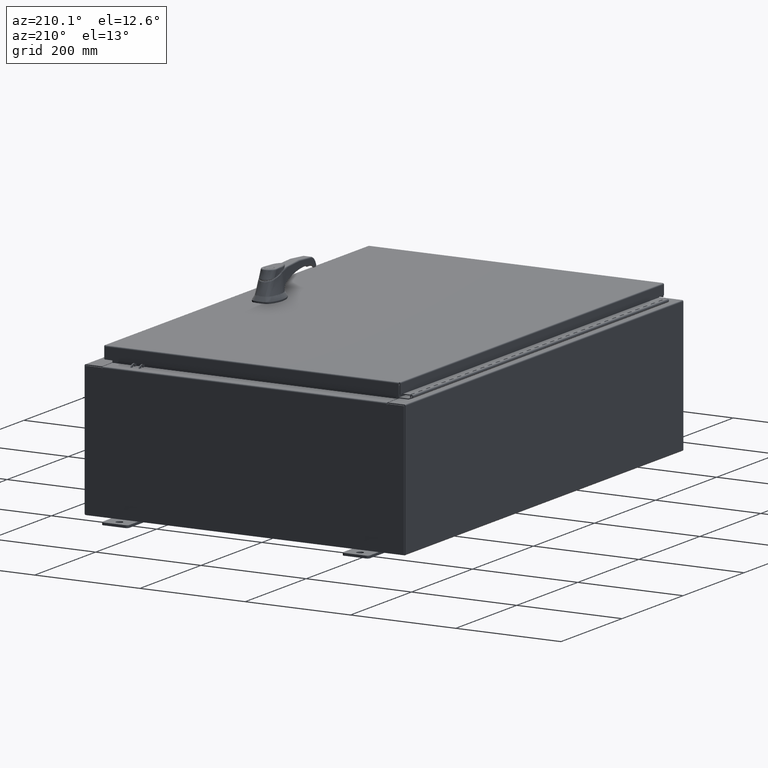
[diagram: clean part render]
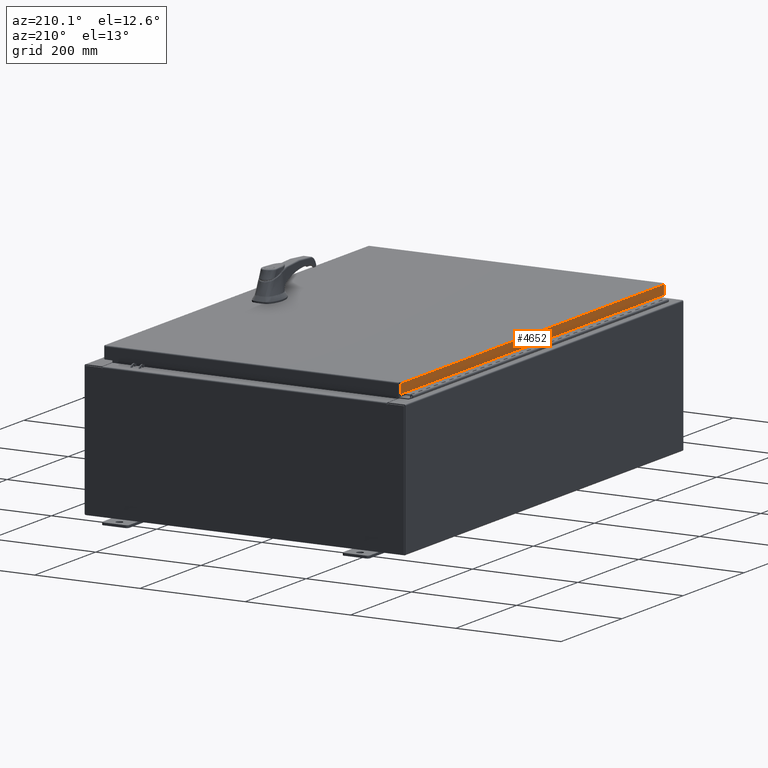
[diagram: same view with one face highlighted and labeled with its STEP entity id]
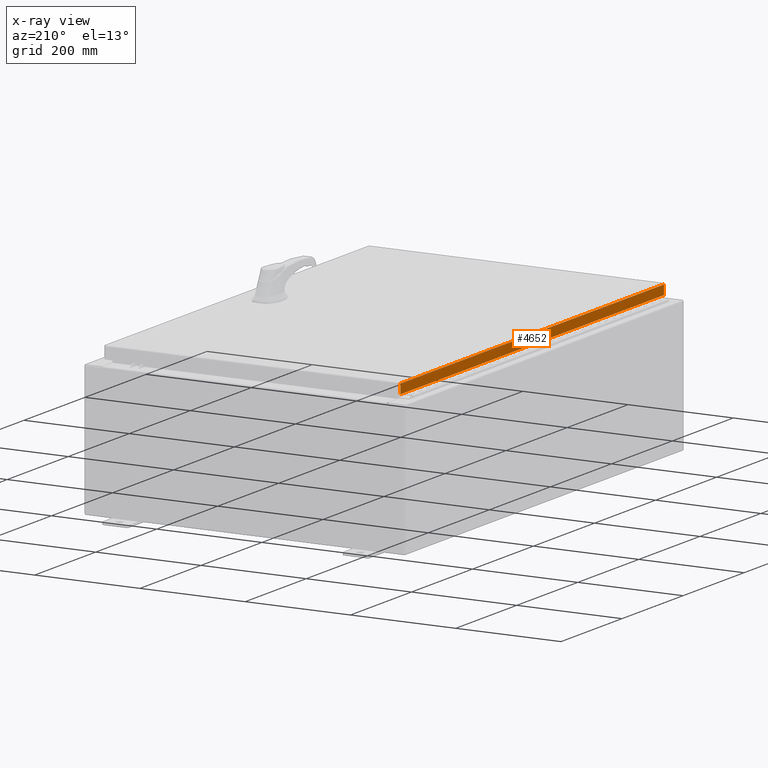
[diagram: x-ray of the same camera — body ghosted, the highlighted face saturated]
A machine part, auxiliary view. The second image highlights one B-rep face of the part: STEP entity #4652.
The next image is the same camera in x-ray: the body ghosted, the highlighted face saturated — about 0% of this face is hidden behind the body in this view.
In plain terms, the highlighted planar face has unit normal (1, 0, -0).
Its self-contained STEP definition (entity closure, byte-faithful):
#195 = VERTEX_POINT ( 'NONE', #102271 ) ;
#1334 = FACE_OUTER_BOUND ( 'NONE', #48030, .T. ) ;
#2145 = LINE ( 'NONE', #114252, #49252 ) ;
#2502 = DIRECTION ( 'NONE',  ( -3.034122441942816500E-015, 6.982962677686265900E-015, -1.000000000000000000 ) ) ;
#4652 = ADVANCED_FACE ( 'NONE', ( #1334 ), #66735, .F. ) ;
#8559 = LINE ( 'NONE', #24525, #105685 ) ;
#13594 = DIRECTION ( 'NONE',  ( -3.034122441942816500E-015, 6.982962677686265900E-015, -1.000000000000000000 ) ) ;
#15946 = LINE ( 'NONE', #69890, #62966 ) ;
#19874 = EDGE_CURVE ( 'NONE', #119636, #195, #76427, .T. ) ;
#19915 = DIRECTION ( 'NONE',  ( -3.034122441942816500E-015, 0.0000000000000000000, -1.000000000000000000 ) ) ;
#24525 = CARTESIAN_POINT ( 'NONE',  ( -11.07800000000000300, -17.09399999999999800, -0.08770000000000004200 ) ) ;
#25028 = CARTESIAN_POINT ( 'NONE',  ( -11.07800000000000500, 17.00515786437628000, -0.7949999999999954900 ) ) ;
#26146 = EDGE_CURVE ( 'NONE', #195, #73414, #2145, .T. ) ;
#26500 = VECTOR ( 'NONE', #2502, 39.37007874015748100 ) ;
#33306 = CARTESIAN_POINT ( 'NONE',  ( -11.07800000000000300, -17.00515786437626200, -0.08770000000000115200 ) ) ;
#43090 = EDGE_CURVE ( 'NONE', #73494, #73414, #15946, .T. ) ;
#45112 = CARTESIAN_POINT ( 'NONE',  ( -11.07800000000000500, 17.00515786437627600, -0.08770000000000223500 ) ) ;
#48030 = EDGE_LOOP ( 'NONE', ( #54308, #85997, #76008, #111539 ) ) ;
#49252 = VECTOR ( 'NONE', #76792, 39.37007874015748100 ) ;
#54308 = ORIENTED_EDGE ( 'NONE', *, *, #58672, .F. ) ;
#57275 = CARTESIAN_POINT ( 'NONE',  ( -11.07800000000000300, -7.081645506917722700E-016, 3.387282206785411200E-014 ) ) ;
#58672 = EDGE_CURVE ( 'NONE', #73494, #119636, #8559, .T. ) ;
#62276 = DIRECTION ( 'NONE',  ( 6.392530697705130400E-017, -1.000000000000000000, 6.392530697705074900E-017 ) ) ;
#62966 = VECTOR ( 'NONE', #13594, 39.37007874015748100 ) ;
#66735 = PLANE ( 'NONE',  #87304 ) ;
#68291 = CARTESIAN_POINT ( 'NONE',  ( -11.07800000000000300, -17.00515786437626500, -0.07469999999999976700 ) ) ;
#69890 = CARTESIAN_POINT ( 'NONE',  ( -11.07800000000000300, 17.00515786437627600, 1.526192047629567600E-013 ) ) ;
#73414 = VERTEX_POINT ( 'NONE', #25028 ) ;
#73494 = VERTEX_POINT ( 'NONE', #45112 ) ;
#76008 = ORIENTED_EDGE ( 'NONE', *, *, #26146, .F. ) ;
#76176 = DIRECTION ( 'NONE',  ( 1.000000000000000000, 6.392530697705110700E-017, -3.034122441942816500E-015 ) ) ;
#76427 = LINE ( 'NONE', #68291, #26500 ) ;
#76792 = DIRECTION ( 'NONE',  ( -6.392530697705073700E-017, 1.000000000000000000, 1.238552822680358100E-016 ) ) ;
#85997 = ORIENTED_EDGE ( 'NONE', *, *, #43090, .T. ) ;
#87304 = AXIS2_PLACEMENT_3D ( 'NONE', #57275, #76176, #19915 ) ;
#102271 = CARTESIAN_POINT ( 'NONE',  ( -11.07800000000000500, -17.00515786437626200, -0.7949999999999996000 ) ) ;
#105685 = VECTOR ( 'NONE', #62276, 39.37007874015748100 ) ;
#111539 = ORIENTED_EDGE ( 'NONE', *, *, #19874, .F. ) ;
#114252 = CARTESIAN_POINT ( 'NONE',  ( -11.07800000000000500, -17.09399999999999800, -0.7949999999999997100 ) ) ;
#119636 = VERTEX_POINT ( 'NONE', #33306 ) ;